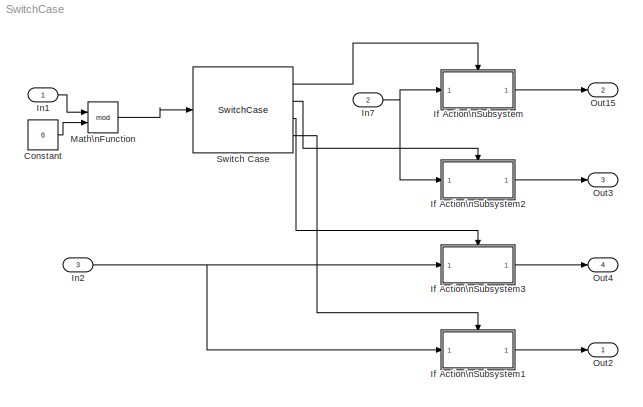
MODEL SwitchCase
KIND model
BLOCK [Constant] Constant
  OutDataTypeStr = int8
  SID = 267
  Value = 6
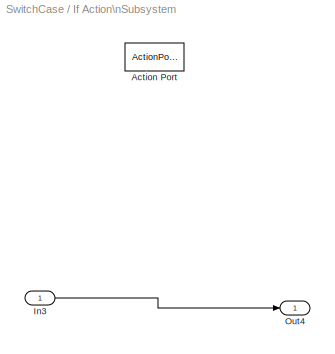
BLOCK [SubSystem] If Action\nSubsystem
  MinAlgLoopOccurrences = on
  Ports = [1, 1, 0, 0, 0, 0, 0, 1]
  RequestExecContextInheritance = off
  SID = 152
  TreatAsAtomicUnit = on
  Variant = off
BLOCK [ActionPort] If Action\nSubsystem/Action Port
  ActionType = case
  SID = 154
BLOCK [Inport] If Action\nSubsystem/In3
  IconDisplay = Port number
  OutDataTypeStr = boolean
  SID = 158
BLOCK [Outport] If Action\nSubsystem/Out4
  IconDisplay = Port number
  SID = 163
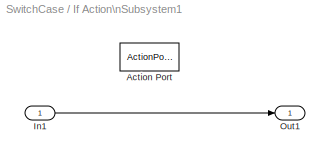
BLOCK [SubSystem] If Action\nSubsystem1
  MinAlgLoopOccurrences = on
  Ports = [1, 1, 0, 0, 0, 0, 0, 1]
  RequestExecContextInheritance = off
  SID = 164
  TreatAsAtomicUnit = on
  Variant = off
BLOCK [ActionPort] If Action\nSubsystem1/Action Port
  ActionType = case
  SID = 166
BLOCK [Inport] If Action\nSubsystem1/In1
  IconDisplay = Port number
  OutDataTypeStr = double
  SID = 165
BLOCK [Outport] If Action\nSubsystem1/Out1
  IconDisplay = Port number
  SID = 167
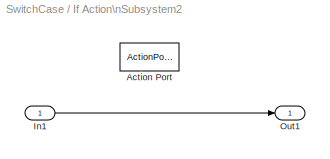
BLOCK [SubSystem] If Action\nSubsystem2
  MinAlgLoopOccurrences = on
  Ports = [1, 1, 0, 0, 0, 0, 0, 1]
  RequestExecContextInheritance = off
  SID = 168
  TreatAsAtomicUnit = on
  Variant = off
BLOCK [ActionPort] If Action\nSubsystem2/Action Port
  ActionType = case
  SID = 170
BLOCK [Inport] If Action\nSubsystem2/In1
  IconDisplay = Port number
  OutDataTypeStr = boolean
  SID = 169
BLOCK [Outport] If Action\nSubsystem2/Out1
  IconDisplay = Port number
  SID = 171
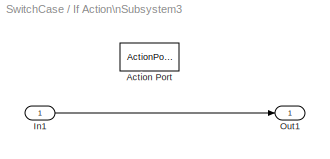
BLOCK [SubSystem] If Action\nSubsystem3
  MinAlgLoopOccurrences = on
  Ports = [1, 1, 0, 0, 0, 0, 0, 1]
  RequestExecContextInheritance = off
  SID = 173
  TreatAsAtomicUnit = on
  Variant = off
BLOCK [ActionPort] If Action\nSubsystem3/Action Port
  ActionType = case
  SID = 175
BLOCK [Inport] If Action\nSubsystem3/In1
  IconDisplay = Port number
  OutDataTypeStr = double
  SID = 174
BLOCK [Outport] If Action\nSubsystem3/Out1
  IconDisplay = Port number
  SID = 176
BLOCK [Inport] In1
  IconDisplay = Port number
  OutDataTypeStr = int8
  SID = 30
BLOCK [Inport] In2
  IconDisplay = Port number
  OutDataTypeStr = double
  Port = 3
  SID = 178
BLOCK [Inport] In7
  IconDisplay = Port number
  OutDataTypeStr = boolean
  Port = 2
  SID = 149
BLOCK [Math] Math\nFunction
  Operator = mod
  Ports = [2, 1]
  SID = 266
BLOCK [Outport] Out15
  IconDisplay = Port number
  Port = 2
  SID = 150
BLOCK [Outport] Out2
  IconDisplay = Port number
  SID = 59
BLOCK [Outport] Out3
  IconDisplay = Port number
  Port = 3
  SID = 172
BLOCK [Outport] Out4
  IconDisplay = Port number
  Port = 4
  SID = 177
BLOCK [SwitchCase] Switch Case
  CaseConditions = {1,2,[3 6],4}
  Ports = [1, 4]
  SID = 264
  ShowDefaultCase = off
LINE Constant:1 -> Math\nFunction:2
LINE If Action\nSubsystem/In3:1 -> If Action\nSubsystem/Out4:1
LINE If Action\nSubsystem1/In1:1 -> If Action\nSubsystem1/Out1:1
LINE If Action\nSubsystem1:1 -> Out2:1
LINE If Action\nSubsystem2/In1:1 -> If Action\nSubsystem2/Out1:1
LINE If Action\nSubsystem2:1 -> Out3:1
LINE If Action\nSubsystem3/In1:1 -> If Action\nSubsystem3/Out1:1
LINE If Action\nSubsystem3:1 -> Out4:1
LINE If Action\nSubsystem:1 -> Out15:1
LINE In1:1 -> Math\nFunction:1
NET In2:1 -> If Action\nSubsystem1:1, If Action\nSubsystem3:1
NET In7:1 -> If Action\nSubsystem2:1, If Action\nSubsystem:1
LINE Math\nFunction:1 -> Switch Case:1
LINE Switch Case:1 -> If Action\nSubsystem:ifaction
LINE Switch Case:2 -> If Action\nSubsystem2:ifaction
LINE Switch Case:3 -> If Action\nSubsystem3:ifaction
LINE Switch Case:4 -> If Action\nSubsystem1:ifaction
note: NET lines group one-source signal fan-out (src -> all destinations, sorted); 1:1 wires keep LINE
